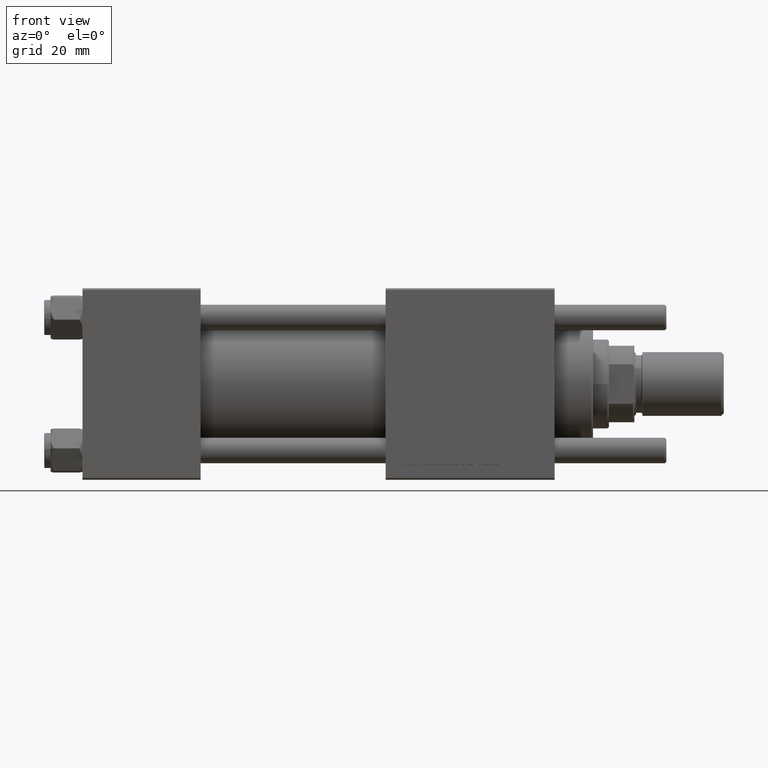
[diagram: clean part render]
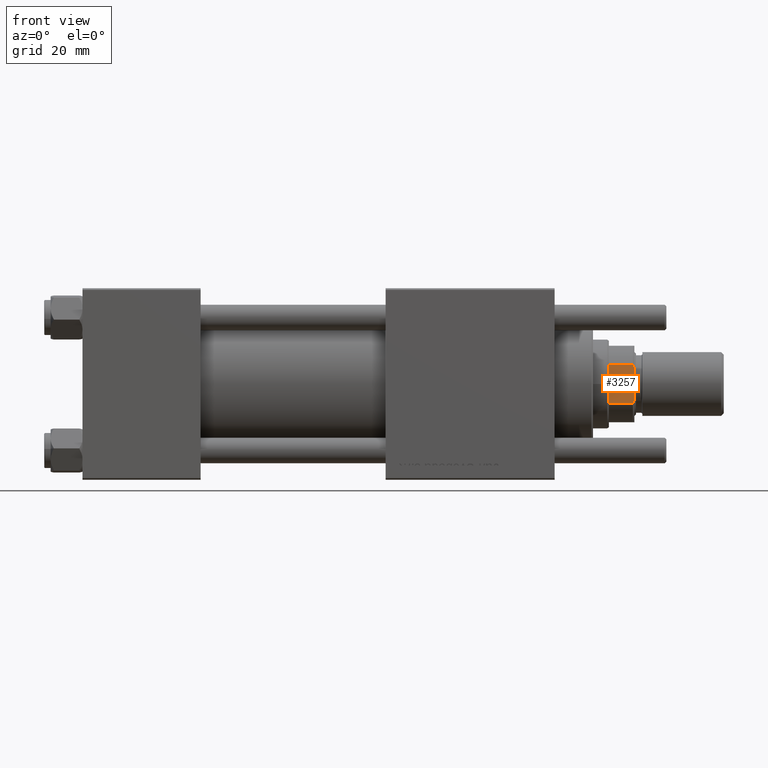
[diagram: same view with one face highlighted and labeled with its STEP entity id]
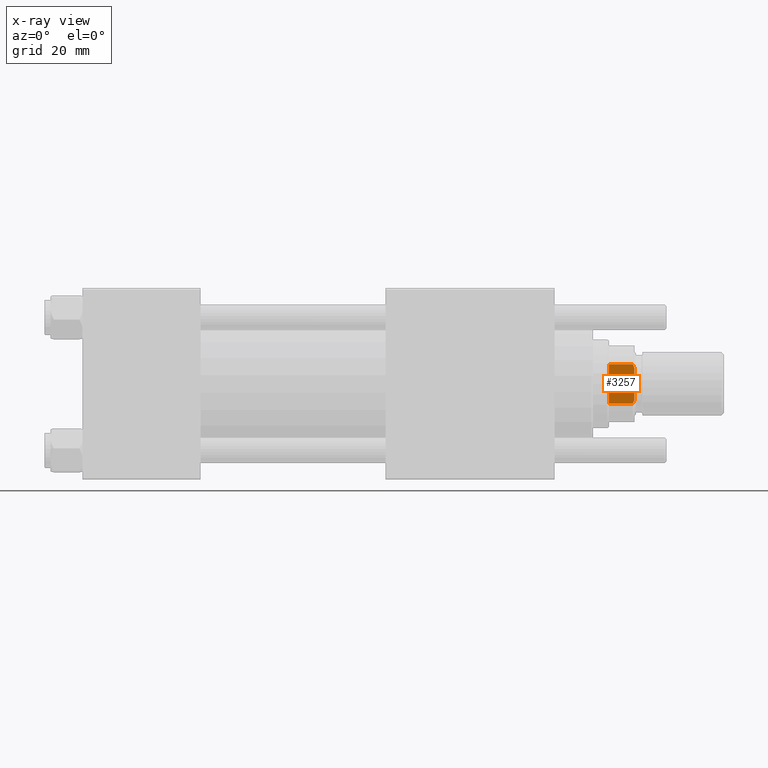
[diagram: x-ray of the same camera — body ghosted, the highlighted face saturated]
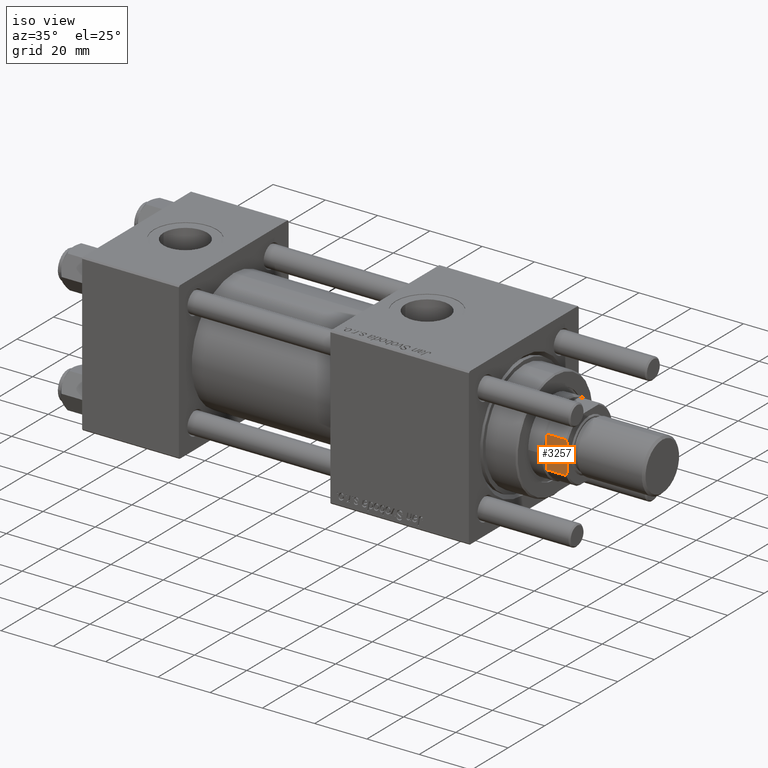
[diagram: same view with one face highlighted and labeled with its STEP entity id]
A machine part, front view. The second image highlights one B-rep face of the part: STEP entity #3257.
The next image is the same camera in x-ray: the body ghosted, the highlighted face saturated — about 0% of this face is hidden behind the body in this view.
A second angle (iso view) of the same face is appended — the face is thin or edge-on in the first view.
In plain terms, the highlighted planar face has unit normal (0, 1, 0).
Its self-contained STEP definition (entity closure, byte-faithful):
#666 = VECTOR ( 'NONE', #11837, 1000.000000000000000 ) ;
#893 = VECTOR ( 'NONE', #1358, 1000.000000000000000 ) ;
#980 = AXIS2_PLACEMENT_3D ( 'NONE', #54560, #6172, #50208 ) ;
#1289 = EDGE_CURVE ( 'NONE', #42108, #8261, #13552, .T. ) ;
#1358 = DIRECTION ( 'NONE',  ( -2.891205793294678326E-16, 1.000000000000000000, -0.000000000000000000 ) ) ;
#2570 = LINE ( 'NONE', #55022, #666 ) ;
#2603 = CARTESIAN_POINT ( 'NONE',  ( 11.99999999999999822, 5.000000000000037303, 136.0000000000000000 ) ) ;
#3257 = ADVANCED_FACE ( 'NONE', ( #6759 ), #45855, .F. ) ;
#3734 = VERTEX_POINT ( 'NONE', #16791 ) ;
#5122 = ORIENTED_EDGE ( 'NONE', *, *, #38381, .F. ) ;
#5150 = CARTESIAN_POINT ( 'NONE',  ( 11.99999999999999645, 11.99999999999999645, 128.0000000000000000 ) ) ;
#5187 = ORIENTED_EDGE ( 'NONE', *, *, #37740, .F. ) ;
#5607 = CARTESIAN_POINT ( 'NONE',  ( 11.99999999999999645, 6.184658438426496652, 128.0000000000000853 ) ) ;
#6172 = DIRECTION ( 'NONE',  ( -1.000000000000000000, -2.891205793294678326E-16, 0.000000000000000000 ) ) ;
#6759 = FACE_OUTER_BOUND ( 'NONE', #51485, .T. ) ;
#8261 = VERTEX_POINT ( 'NONE', #5607 ) ;
#9686 = EDGE_CURVE ( 'NONE', #8261, #16832, #19729, .T. ) ;
#11837 = DIRECTION ( 'NONE',  ( -2.891205793294678326E-16, 1.000000000000000000, -0.000000000000000000 ) ) ;
#13552 = LINE ( 'NONE', #5150, #893 ) ;
#14013 = VECTOR ( 'NONE', #46375, 1000.000000000000000 ) ;
#14515 = VECTOR ( 'NONE', #16450, 1000.000000000000000 ) ;
#16450 = DIRECTION ( 'NONE',  ( -0.000000000000000000, -0.000000000000000000, 1.000000000000000000 ) ) ;
#16791 = CARTESIAN_POINT ( 'NONE',  ( 11.99999999999999467, -6.184658438426501981, 135.5000000000000284 ) ) ;
#16832 = VERTEX_POINT ( 'NONE', #40972 ) ;
#18407 = EDGE_CURVE ( 'NONE', #16832, #27699, #26251, .T. ) ;
#19675 = CARTESIAN_POINT ( 'NONE',  ( 11.99999999999999822, 5.000000000000037303, 136.0000000000000000 ) ) ;
#19729 = LINE ( 'NONE', #33910, #14013 ) ;
#21864 = EDGE_CURVE ( 'NONE', #39605, #3734, #39245, .T. ) ;
#22235 = LINE ( 'NONE', #39917, #14515 ) ;
#23722 = CARTESIAN_POINT ( 'NONE',  ( 11.99999999999999822, 5.400255697127821719, 135.8460555011047006 ) ) ;
#23780 = ORIENTED_EDGE ( 'NONE', *, *, #1289, .T. ) ;
#26251 = B_SPLINE_CURVE_WITH_KNOTS ( 'NONE', 3,
 ( #55024, #36781, #23722, #19675 ),
 .UNSPECIFIED., .F., .F.,
 ( 4, 4 ),
 ( 0.000000000000000000, 0.001285852097146085102 ),
 .UNSPECIFIED. ) ;
#26801 = CARTESIAN_POINT ( 'NONE',  ( 11.99999999999999467, -6.184658438426501981, 128.0000000000000853 ) ) ;
#27222 = CARTESIAN_POINT ( 'NONE',  ( 12.00000000000000178, -5.000000000000056843, 136.0000000000000000 ) ) ;
#27699 = VERTEX_POINT ( 'NONE', #2603 ) ;
#30416 = CARTESIAN_POINT ( 'NONE',  ( 11.99999999999999467, -6.184658438426501981, 135.5000000000000284 ) ) ;
#33910 = CARTESIAN_POINT ( 'NONE',  ( 11.99999999999999645, 6.184658438426496652, -0.001000000000001000089 ) ) ;
#34766 = CARTESIAN_POINT ( 'NONE',  ( 12.00000000000000178, -5.400255697127827936, 135.8460555011047006 ) ) ;
#36781 = CARTESIAN_POINT ( 'NONE',  ( 11.99999999999999645, 5.794808544282254559, 135.6785991435214385 ) ) ;
#37740 = EDGE_CURVE ( 'NONE', #42108, #3734, #22235, .T. ) ;
#38145 = CARTESIAN_POINT ( 'NONE',  ( 12.00000000000000178, -5.000000000000056843, 136.0000000000000000 ) ) ;
#38381 = EDGE_CURVE ( 'NONE', #39605, #27699, #2570, .T. ) ;
#39131 = CARTESIAN_POINT ( 'NONE',  ( 12.00000000000000178, -5.794808544282264329, 135.6785991435214385 ) ) ;
#39245 = B_SPLINE_CURVE_WITH_KNOTS ( 'NONE', 3,
 ( #27222, #34766, #39131, #30416 ),
 .UNSPECIFIED., .F., .F.,
 ( 4, 4 ),
 ( 8.673617379884035472E-19, 0.001285852097146073176 ),
 .UNSPECIFIED. ) ;
#39605 = VERTEX_POINT ( 'NONE', #38145 ) ;
#39917 = CARTESIAN_POINT ( 'NONE',  ( 11.99999999999999467, -6.184658438426501981, -0.001000000000001000089 ) ) ;
#40023 = ORIENTED_EDGE ( 'NONE', *, *, #21864, .T. ) ;
#40972 = CARTESIAN_POINT ( 'NONE',  ( 11.99999999999999645, 6.184658438426496652, 135.5000000000000284 ) ) ;
#42108 = VERTEX_POINT ( 'NONE', #26801 ) ;
#45855 = PLANE ( 'NONE',  #980 ) ;
#46375 = DIRECTION ( 'NONE',  ( -0.000000000000000000, -0.000000000000000000, 1.000000000000000000 ) ) ;
#48011 = ORIENTED_EDGE ( 'NONE', *, *, #9686, .T. ) ;
#50208 = DIRECTION ( 'NONE',  ( 2.891205793294678326E-16, -1.000000000000000000, 0.000000000000000000 ) ) ;
#51485 = EDGE_LOOP ( 'NONE', ( #48011, #55004, #5122, #40023, #5187, #23780 ) ) ;
#54560 = CARTESIAN_POINT ( 'NONE',  ( 11.99999999999999645, 11.99999999999999645, 136.0000000000000000 ) ) ;
#55004 = ORIENTED_EDGE ( 'NONE', *, *, #18407, .T. ) ;
#55022 = CARTESIAN_POINT ( 'NONE',  ( 11.99999999999999645, 11.99999999999999645, 136.0000000000000000 ) ) ;
#55024 = CARTESIAN_POINT ( 'NONE',  ( 11.99999999999999645, 6.184658438426496652, 135.5000000000000284 ) ) ;